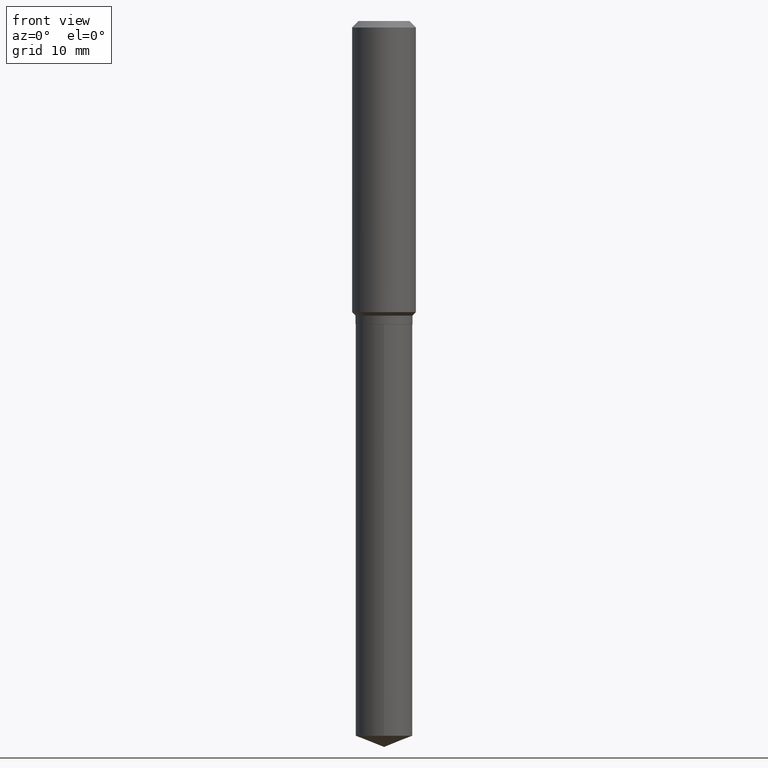
[diagram: clean part render]
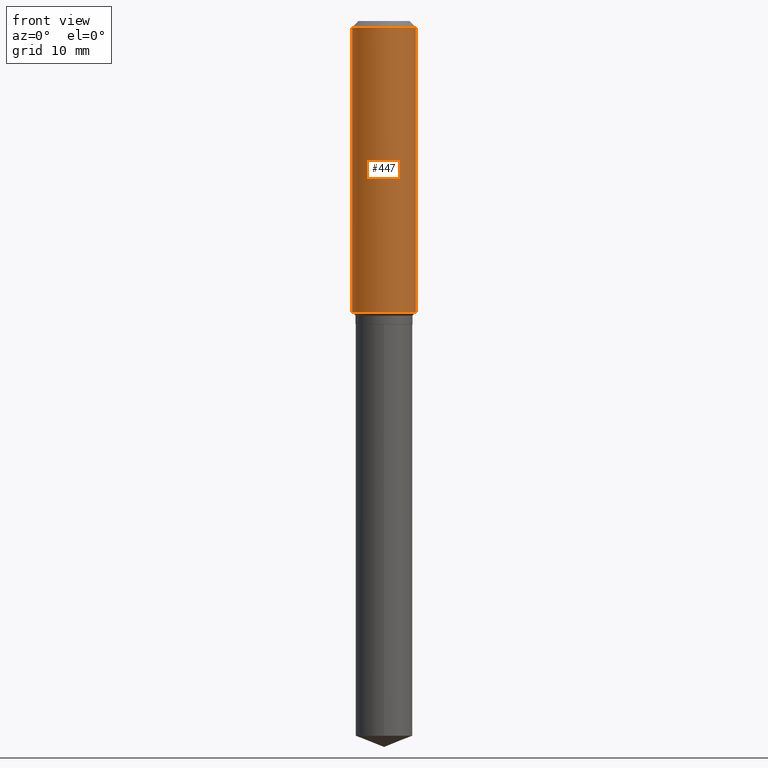
[diagram: same view with one face highlighted and labeled with its STEP entity id]
A machine part, front view. The second image highlights one B-rep face of the part: STEP entity #447.
In plain terms, the highlighted cylindrical surface (edge-blend (fillet) strip) has radius 4.0005 mm, axis along (-0, 0, 1).
Its self-contained STEP definition (entity closure, byte-faithful):
#18 = DIRECTION ( 'NONE',  ( -2.445468806185136877E-29, 3.491481338843145188E-15, 1.000000000000000000 ) ) ;
#19 = ORIENTED_EDGE ( 'NONE', *, *, #483, .F. ) ;
#22 = CARTESIAN_POINT ( 'NONE',  ( 3.513894127607422832E-29, -5.016909535783715749E-15, -1.436899999999999844 ) ) ;
#33 = VERTEX_POINT ( 'NONE', #131 ) ;
#50 = DIRECTION ( 'NONE',  ( 1.000000000000000000, -6.982962677686267499E-15, 0.000000000000000000 ) ) ;
#60 = CIRCLE ( 'NONE', #254, 0.1575000000000001676 ) ;
#63 = ORIENTED_EDGE ( 'NONE', *, *, #441, .T. ) ;
#89 = VECTOR ( 'NONE', #18, 39.37007874015748143 ) ;
#91 = FACE_OUTER_BOUND ( 'NONE', #292, .T. ) ;
#131 = CARTESIAN_POINT ( 'NONE',  ( -0.1575000000000000011, -1.444340790156479211E-15, -0.03150000000000019451 ) ) ;
#161 = VECTOR ( 'NONE', #226, 39.37007874015748143 ) ;
#172 = CARTESIAN_POINT ( 'NONE',  ( 7.703226739483228723E-31, -1.099816621735597661E-16, -0.03150000000000019451 ) ) ;
#184 = EDGE_CURVE ( 'NONE', #235, #433, #465, .T. ) ;
#208 = DIRECTION ( 'NONE',  ( 1.000000000000000000, -6.982962677686267499E-15, 4.876176775795936353E-29 ) ) ;
#220 = AXIS2_PLACEMENT_3D ( 'NONE', #172, #333, #286 ) ;
#226 = DIRECTION ( 'NONE',  ( -2.445468806185136877E-29, 3.491481338843145188E-15, 1.000000000000000000 ) ) ;
#235 = VERTEX_POINT ( 'NONE', #341 ) ;
#241 = CARTESIAN_POINT ( 'NONE',  ( 0.000000000000000000, 0.000000000000000000, 0.000000000000000000 ) ) ;
#254 = AXIS2_PLACEMENT_3D ( 'NONE', #22, #313, #50 ) ;
#262 = CARTESIAN_POINT ( 'NONE',  ( 0.1575000000000000844, -1.099816621735587677E-15, 7.679978421878603638E-30 ) ) ;
#278 = CARTESIAN_POINT ( 'NONE',  ( 0.1575000000000000011, -1.209798283909146741E-15, -0.03150000000000019451 ) ) ;
#286 = DIRECTION ( 'NONE',  ( 1.000000000000000000, -6.982962677686265922E-15, 0.000000000000000000 ) ) ;
#292 = EDGE_LOOP ( 'NONE', ( #392, #63, #413, #19 ) ) ;
#313 = DIRECTION ( 'NONE',  ( -2.445468806185136597E-29, 3.491481338843145583E-15, 1.000000000000000000 ) ) ;
#321 = LINE ( 'NONE', #357, #89 ) ;
#333 = DIRECTION ( 'NONE',  ( -2.445468806185136597E-29, 3.491481338843145583E-15, 1.000000000000000000 ) ) ;
#341 = CARTESIAN_POINT ( 'NONE',  ( 0.1575000000000001676, -6.116726157519303229E-15, -1.436899999999999844 ) ) ;
#357 = CARTESIAN_POINT ( 'NONE',  ( -0.1575000000000000844, 1.119104808822158392E-15, -7.747322767151481189E-30 ) ) ;
#359 = CYLINDRICAL_SURFACE ( 'NONE', #399, 0.1575000000000000844 ) ;
#360 = EDGE_CURVE ( 'NONE', #435, #33, #321, .T. ) ;
#377 = CIRCLE ( 'NONE', #220, 0.1575000000000000011 ) ;
#392 = ORIENTED_EDGE ( 'NONE', *, *, #360, .F. ) ;
#397 = DIRECTION ( 'NONE',  ( -2.445468806185136597E-29, 3.491481338843145583E-15, 1.000000000000000000 ) ) ;
#398 = CARTESIAN_POINT ( 'NONE',  ( -0.1575000000000001676, -3.897804726961556568E-15, -1.436899999999999844 ) ) ;
#399 = AXIS2_PLACEMENT_3D ( 'NONE', #241, #397, #208 ) ;
#413 = ORIENTED_EDGE ( 'NONE', *, *, #184, .T. ) ;
#433 = VERTEX_POINT ( 'NONE', #278 ) ;
#435 = VERTEX_POINT ( 'NONE', #398 ) ;
#441 = EDGE_CURVE ( 'NONE', #435, #235, #60, .T. ) ;
#447 = ADVANCED_FACE ( 'NONE', ( #91 ), #359, .T. ) ;
#465 = LINE ( 'NONE', #262, #161 ) ;
#483 = EDGE_CURVE ( 'NONE', #33, #433, #377, .T. ) ;